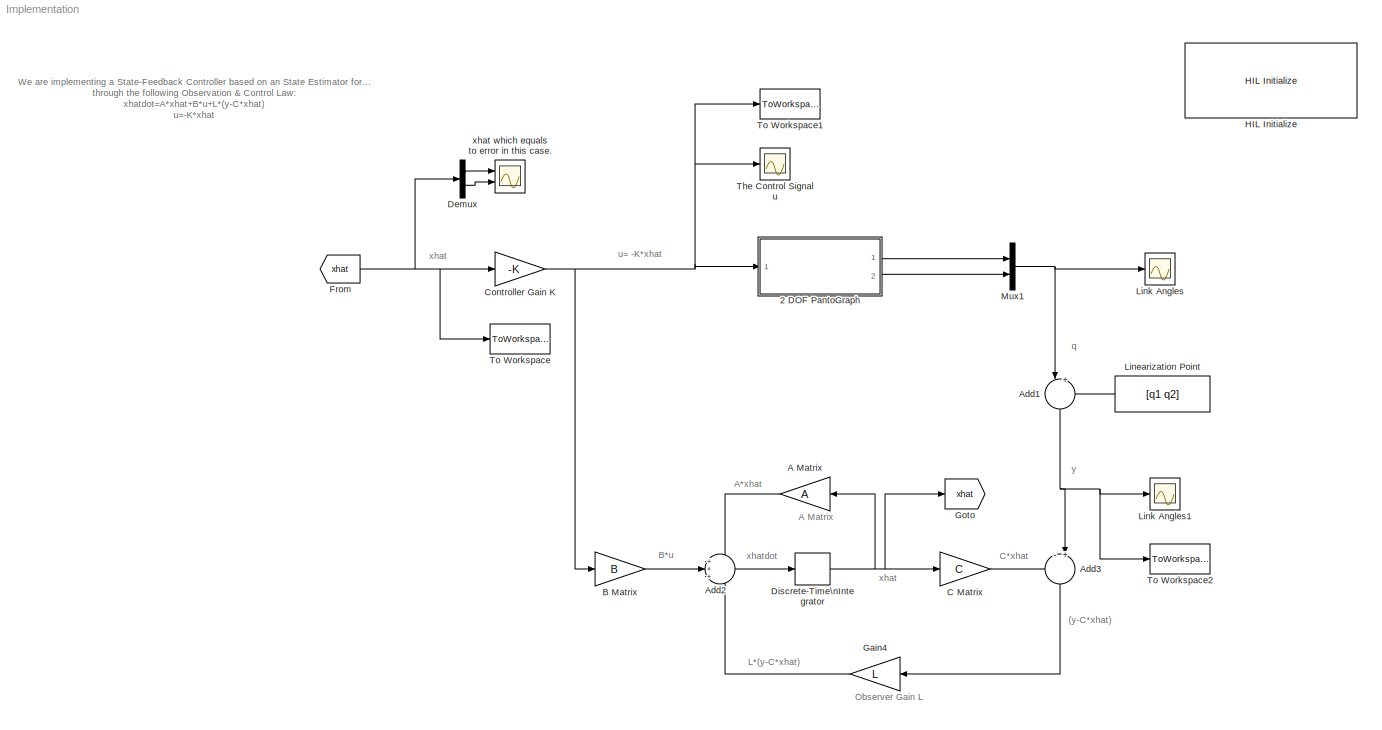
MODEL Implementation
KIND model
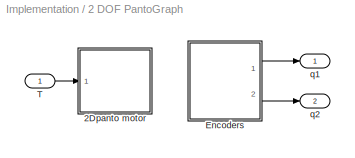
BLOCK [SubSystem] 2 DOF PantoGraph
  FunctionWithSeparateData = off
  MaskHideContents = off
  MinAlgLoopOccurrences = off
  Opaque = off
  Ports = [1, 2]
  PropExecContextOutsideSubsystem = off
  RTWSystemCode = Auto
  RequestExecContextInheritance = off
  SID = 22
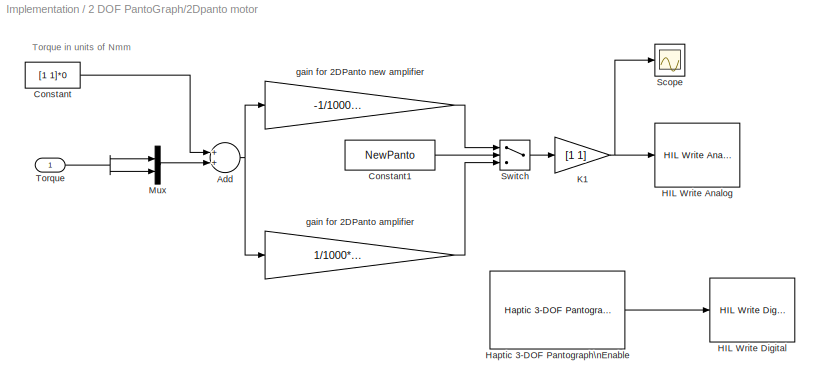
BLOCK [SubSystem] 2 DOF PantoGraph/2Dpanto motor
  FunctionWithSeparateData = off
  MaskHideContents = off
  MinAlgLoopOccurrences = off
  Opaque = off
  Ports = [1]
  PropExecContextOutsideSubsystem = off
  RTWSystemCode = Auto
  RequestExecContextInheritance = off
  SID = 24
BLOCK [Sum] 2 DOF PantoGraph/2Dpanto motor/Add
  InputSameDT = off
  OutDataTypeStr = Inherit: Inherit via internal rule
  Ports = [2, 1]
  SID = 26
  SaturateOnIntegerOverflow = off
BLOCK [Constant] 2 DOF PantoGraph/2Dpanto motor/Constant
  SID = 27
  Value = [1 1]*0
BLOCK [Constant] 2 DOF PantoGraph/2Dpanto motor/Constant1
  SID = 28
  Value = NewPanto
BLOCK [Reference] 2 DOF PantoGraph/2Dpanto motor/HIL Write Analog  REF=quarc_library/Data Acquisition/Generic/Immediate I//O/HIL Write Analog
  AttributesFormatString = (%<object_name>)
  Ports = [1]
  SID = 29
  SourceBlock = quarc_library/Data Acquisition/Generic/Immediate I//O/HIL Write Analog
  SourceType = HIL Write Analog
  UserData = DataTag0
  UserDataPersistent = on
  active = off
  channels = [0:1]
  object_name = HIL-2
  sample_time = -1
  vector_input = on
BLOCK [Reference] 2 DOF PantoGraph/2Dpanto motor/HIL Write Digital  REF=quarc_library/Data Acquisition/Generic/Immediate I//O/HIL Write Digital
  AttributesFormatString = (%<object_name>)
  Ports = [1]
  SID = 30
  SourceBlock = quarc_library/Data Acquisition/Generic/Immediate I//O/HIL Write Digital
  SourceType = HIL Write Digital
  UserData = DataTag1
  UserDataPersistent = on
  active = off
  channels = 0:3
  object_name = HIL-2
  sample_time = -1
  vector_input = on
BLOCK [Reference] 2 DOF PantoGraph/2Dpanto motor/Haptic 3-DOF Pantograph\nEnable  REF=quarc_library/Devices/Quanser/Haptics/Pantographs/Haptic 3-DOF\nPlanar Pantograph/Interfacing/Haptic 3-DOF Pantograph\nEnable
  Ports = [0, 1]
  SID = 31
  SourceBlock = quarc_library/Devices/Quanser/Haptics/Pantographs/Haptic 3-DOF\nPlanar Pantograph/Interfacing/Haptic 3-DOF Pantograph\nEnable
  SourceType = Haptic 3-DOF Pantograph Enable
BLOCK [Gain] 2 DOF PantoGraph/2Dpanto motor/K1
  Gain = [1 1]
  OutDataTypeStr = Inherit: Inherit via internal rule
  ParamDataTypeStr = Inherit: Inherit via internal rule
  SID = 32
  SaturateOnIntegerOverflow = off
BLOCK [Mux] 2 DOF PantoGraph/2Dpanto motor/Mux
  DisplayOption = bar
  Inputs = 2
  Ports = [2, 1]
  SID = 33
BLOCK [Scope] 2 DOF PantoGraph/2Dpanto motor/Scope
  DataFormat = StructureWithTime
  Floating = off
  NumInputPorts = 1
  Ports = [1]
  SID = 34
  SampleTime = 0
  SaveName = ScopeData2
BLOCK [Switch] 2 DOF PantoGraph/2Dpanto motor/Switch
  Criteria = u2 > Threshold
  InputSameDT = off
  SID = 35
  SaturateOnIntegerOverflow = off
BLOCK [Inport] 2 DOF PantoGraph/2Dpanto motor/Torque
  IconDisplay = Port number
  SID = 25
BLOCK [Gain] 2 DOF PantoGraph/2Dpanto motor/gain for 2DPanto amplifier
  Gain = 1/1000*2.17/4.9
  OutDataTypeStr = Inherit: Inherit via internal rule
  ParamDataTypeStr = Inherit: Inherit via internal rule
  SID = 36
  SaturateOnIntegerOverflow = off
BLOCK [Gain] 2 DOF PantoGraph/2Dpanto motor/gain for 2DPanto new amplifier
  Gain = -1/1000*4*2.17/4.9
  OutDataTypeStr = Inherit: Inherit via internal rule
  ParamDataTypeStr = Inherit: Inherit via internal rule
  SID = 37
  SaturateOnIntegerOverflow = off
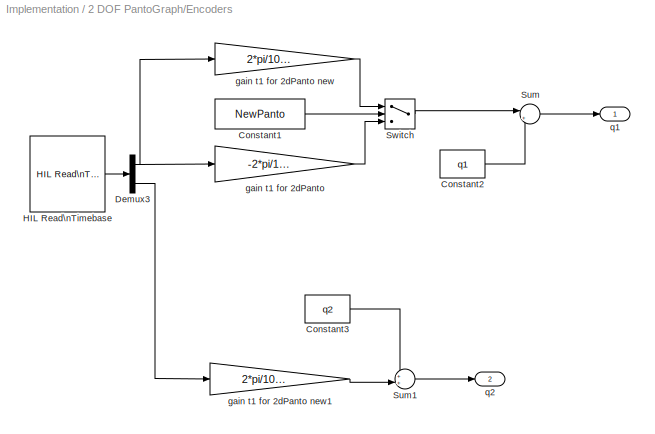
BLOCK [SubSystem] 2 DOF PantoGraph/Encoders
  FunctionWithSeparateData = off
  MaskHideContents = off
  MinAlgLoopOccurrences = off
  Opaque = off
  Ports = [0, 2]
  PropExecContextOutsideSubsystem = off
  RTWSystemCode = Auto
  RequestExecContextInheritance = off
  SID = 38
BLOCK [Constant] 2 DOF PantoGraph/Encoders/Constant1
  SID = 39
  Value = NewPanto
BLOCK [Constant] 2 DOF PantoGraph/Encoders/Constant2
  SID = 40
  Value = q1
BLOCK [Constant] 2 DOF PantoGraph/Encoders/Constant3
  SID = 41
  Value = q2
BLOCK [Demux] 2 DOF PantoGraph/Encoders/Demux3
  DisplayOption = bar
  Outputs = 3
  Ports = [1, 3]
  SID = 42
BLOCK [Reference] 2 DOF PantoGraph/Encoders/HIL Read\nTimebase  REF=quarc_library/Data Acquisition/Generic/Timebases/HIL Read\nTimebase
  AttributesFormatString = (%<object_name>)
  Ports = [0, 1]
  SID = 43
  SourceBlock = quarc_library/Data Acquisition/Generic/Timebases/HIL Read\nTimebase
  SourceType = HIL Read Timebase
  UserData = DataTag2
  UserDataPersistent = on
  active = on
  analog_channels = []
  clock = 0
  data_type_mode = Inherit via back propagation
  digital_channels = []
  digital_data_type = boolean
  encoder_channels = [0:2]
  encoder_data_type = double
  object_name = HIL-2
  other_channels = []
  samples_in_buffer = max(ceil(1/qc_get_step_size), 1)
  vector_output = on
BLOCK [Sum] 2 DOF PantoGraph/Encoders/Sum
  IconShape = round
  InputSameDT = off
  Inputs = |++
  OutDataTypeStr = Inherit: Inherit via internal rule
  Ports = [2, 1]
  SID = 44
  SaturateOnIntegerOverflow = off
BLOCK [Sum] 2 DOF PantoGraph/Encoders/Sum1
  IconShape = round
  InputSameDT = off
  Inputs = ++|
  OutDataTypeStr = Inherit: Inherit via internal rule
  Ports = [2, 1]
  SID = 45
  SaturateOnIntegerOverflow = off
BLOCK [Switch] 2 DOF PantoGraph/Encoders/Switch
  Criteria = u2 > Threshold
  InputSameDT = off
  SID = 46
  SaturateOnIntegerOverflow = off
BLOCK [Gain] 2 DOF PantoGraph/Encoders/gain t1 for 2dPanto
  Gain = -2*pi/1024/75
  OutDataTypeStr = Inherit: Inherit via internal rule
  ParamDataTypeStr = Inherit: Inherit via internal rule
  SID = 47
  SaturateOnIntegerOverflow = off
BLOCK [Gain] 2 DOF PantoGraph/Encoders/gain t1 for 2dPanto new
  Gain = 2*pi/1024/75
  OutDataTypeStr = Inherit: Inherit via internal rule
  ParamDataTypeStr = Inherit: Inherit via internal rule
  SID = 48
  SaturateOnIntegerOverflow = off
BLOCK [Gain] 2 DOF PantoGraph/Encoders/gain t1 for 2dPanto new1
  Gain = 2*pi/1000/5
  OutDataTypeStr = Inherit: Inherit via internal rule
  ParamDataTypeStr = Inherit: Inherit via internal rule
  SID = 49
  SaturateOnIntegerOverflow = off
BLOCK [Outport] 2 DOF PantoGraph/Encoders/q1
  IconDisplay = Port number
  SID = 50
BLOCK [Outport] 2 DOF PantoGraph/Encoders/q2
  IconDisplay = Port number
  Port = 2
  SID = 51
BLOCK [Inport] 2 DOF PantoGraph/T
  IconDisplay = Port number
  SID = 23
BLOCK [Outport] 2 DOF PantoGraph/q1
  IconDisplay = Port number
  SID = 52
BLOCK [Outport] 2 DOF PantoGraph/q2
  IconDisplay = Port number
  Port = 2
  SID = 53
BLOCK [Gain] A Matrix
  Gain = A
  Multiplication = Matrix(K*u)
  OutDataTypeStr = Inherit: Inherit via internal rule
  ParamDataTypeStr = Inherit: Inherit via internal rule
  SID = 14
  SaturateOnIntegerOverflow = off
BLOCK [Sum] Add1
  IconShape = round
  InputSameDT = off
  Inputs = |+-
  OutDataTypeStr = Inherit: Inherit via internal rule
  Ports = [2, 1]
  SID = 107
  SaturateOnIntegerOverflow = off
BLOCK [Sum] Add2
  IconShape = round
  InputSameDT = off
  Inputs = +++
  OutDataTypeStr = Inherit: Inherit via internal rule
  Ports = [3, 1]
  SID = 3
  SaturateOnIntegerOverflow = off
BLOCK [Sum] Add3
  IconShape = round
  InputSameDT = off
  Inputs = -+|
  OutDataTypeStr = Inherit: Inherit via internal rule
  Ports = [2, 1]
  SID = 4
  SaturateOnIntegerOverflow = off
BLOCK [Gain] B Matrix
  Gain = B
  Multiplication = Matrix(K*u)
  OutDataTypeStr = Inherit: Inherit via internal rule
  ParamDataTypeStr = Inherit: Inherit via internal rule
  SID = 12
  SaturateOnIntegerOverflow = off
BLOCK [Gain] C Matrix
  Gain = C
  Multiplication = Matrix(K*u)
  OutDataTypeStr = Inherit: Inherit via internal rule
  ParamDataTypeStr = Inherit: Inherit via internal rule
  SID = 13
  SaturateOnIntegerOverflow = off
BLOCK [Gain] Controller Gain K
  Gain = -K
  Multiplication = Matrix(K*u)
  OutDataTypeStr = Inherit: Inherit via internal rule
  ParamDataTypeStr = Inherit: Inherit via internal rule
  SID = 11
  SaturateOnIntegerOverflow = off
BLOCK [Demux] Demux
  DisplayOption = bar
  Outputs = 2
  Ports = [1, 2]
  SID = 112
BLOCK [DiscreteIntegrator] Discrete-Time\nIntegrator
  ExternalReset = none
  ICPrevOutput = DiscIntNeverNeededParam
  ICPrevScaledInput = DiscIntNeverNeededParam
  InitialCondition = [0 0 0 0]'
  InitialConditionSource = internal
  IntegratorMethod = Integration: Forward Euler
  Ports = [1, 1]
  SID = 10
  SampleTime = T
BLOCK [From] From
  GotoTag = xhat
  SID = 110
BLOCK [Gain] Gain4
  Gain = L
  Multiplication = Matrix(K*u)
  OutDataTypeStr = Inherit: Inherit via internal rule
  ParamDataTypeStr = Inherit: Inherit via internal rule
  SID = 15
  SaturateOnIntegerOverflow = off
BLOCK [Goto] Goto
  GotoTag = xhat
  SID = 109
  TagVisibility = local
BLOCK [Reference] HIL Initialize  REF=quarc_library/Data Acquisition/Generic/Configuration/HIL Initialize
  AttributesFormatString = %<object_name> (%<board_type>-%<board_number>)
  Ports = []
  SID = 1
  SourceBlock = quarc_library/Data Acquisition/Generic/Configuration/HIL Initialize
  SourceType = HIL Initialize
  UserData = DataTag3
  UserDataPersistent = on
  active = on
  analog_input_channels = [0:3]
  analog_input_maximums = 10
  analog_input_minimums = -10
  analog_output_channels = [0:3]
  analog_output_maximums = [10]
  analog_output_minimums = [-10]
  board_number = 0
  board_type = q4
  clock_modes = [0 0]
  digital_input_channels = []
  digital_output_channels = [0:3]
  digital_output_configuration = []
  encoder_channels = [0:3]
  encoder_filter_frequency = (1/60e-9)/1
  exclusive = off
  final_analog_outputs = [0]
  final_digital_outputs = [1]
  final_other_outputs = []
  final_pwm_outputs = [0]
  hardware_clocks = [0:1]
  initial_analog_outputs = [0]
  initial_clock_frequencies = []
  initial_digital_outputs = [1]
  initial_encoder_counts = [0]
  initial_other_outputs = []
  initial_pwm_outputs = [0]
  object_name = HIL-2
  other_output_channels = []
  pwm_alignment = []
  pwm_channels = []
  pwm_configuration = []
  pwm_frequency = (1/60e-9)/1024
  pwm_leading_deadband = []
  pwm_modes = [0]
  pwm_polarity = []
  pwm_trailing_deadband = []
  quadrature = [4]
  set_analog_input_params_at_start = off
  set_analog_input_params_at_switch_in = off
  set_analog_output_params_at_start = on
  set_analog_output_params_at_switch_in = off
  set_analog_outputs_at_start = on
  set_analog_outputs_at_switch_in = off
  set_analog_outputs_at_switch_out = off
  set_analog_outputs_at_terminate = on
  set_analog_outputs_on_watchdog = off
  set_clock_frequencies_at_start = off
  set_clock_frequencies_at_switch_in = off
  set_clock_params_at_start = on
  set_clock_params_at_switch_in = off
  set_digital_output_params_at_start = off
  set_digital_output_params_at_switch_in = off
  set_digital_outputs_at_start = on
  set_digital_outputs_at_switch_in = off
  set_digital_outputs_at_switch_out = off
  set_digital_outputs_at_terminate = on
  set_digital_outputs_on_watchdog = off
  set_encoder_counts_at_start = on
  set_encoder_counts_at_switch_in = off
  set_encoder_params_at_start = on
  set_encoder_params_at_switch_in = off
  set_other_outputs_at_start = off
  set_other_outputs_at_switch_in = off
  set_other_outputs_at_switch_out = off
  set_other_outputs_at_terminate = off
  set_other_outputs_on_watchdog = off
  set_pwm_outputs_at_start = on
  set_pwm_outputs_at_switch_in = off
  set_pwm_outputs_at_switch_out = off
  set_pwm_outputs_at_terminate = on
  set_pwm_outputs_on_watchdog = off
  set_pwm_params_at_start = on
  set_pwm_params_at_switch_in = off
  watchdog_analog_outputs = 0
  watchdog_digital_outputs = [2]
  watchdog_other_outputs = []
  watchdog_pwm_outputs = []
BLOCK [Constant] Linearization Point
  SID = 106
  Value = [q1 q2]
BLOCK [Scope] Link Angles
  DataFormat = StructureWithTime
  Floating = off
  LimitDataPoints = off
  NumInputPorts = 1
  Ports = [1]
  SID = 19
  SampleTime = 0
  SaveName = ScopeData1
  TimeRange = 30
  YMax = 3.2
  YMin = 1.5
BLOCK [Scope] Link Angles1
  DataFormat = StructureWithTime
  Floating = off
  LimitDataPoints = off
  NumInputPorts = 1
  Ports = [1]
  SID = 111
  SampleTime = 0
  SaveName = ScopeData4
  TimeRange = 60
  YMax = 0.017
  YMin = 0
  ZoomMode = yonly
BLOCK [Mux] Mux1
  DisplayOption = bar
  Inputs = 2
  Ports = [2, 1]
  SID = 17
BLOCK [Scope] The Control Signal u
  DataFormat = StructureWithTime
  Floating = off
  LimitDataPoints = off
  NumInputPorts = 1
  Ports = [1]
  SID = 20
  SampleTime = 0
  SaveName = ScopeData3
  TimeRange = 30
  YMax = 300
  YMin = -300
BLOCK [ToWorkspace] To Workspace
  MaxDataPoints = inf
  Ports = [1]
  SID = 116
  SampleTime = -1
  SaveFormat = Structure
  VariableName = xhat
BLOCK [ToWorkspace] To Workspace1
  MaxDataPoints = inf
  Ports = [1]
  SID = 117
  SampleTime = -1
  SaveFormat = Structure
  VariableName = inputu
BLOCK [ToWorkspace] To Workspace2
  MaxDataPoints = inf
  Ports = [1]
  SID = 118
  SampleTime = -1
  SaveFormat = Structure
  VariableName = outputy
BLOCK [Scope] xhat which equals to error in this case.
  DataFormat = StructureWithTime
  Floating = off
  LimitDataPoints = off
  NumInputPorts = 2
  Ports = [2]
  SID = 21
  SampleTime = 0
  YMax = 0.0045~0.15
  YMin = -0.003~-0.15
ANNOTATION (root): (y-C*xhat)
ANNOTATION (root): A Matrix
ANNOTATION (root): A*xhat
ANNOTATION (root): B*u
ANNOTATION (root): C*xhat
ANNOTATION (root): L*(y-C*xhat)
ANNOTATION (root): Observer Gain L
ANNOTATION (root): We are implementing a State-Feedback Controller based on an State Estimator for the 2 DOF PantoGraph Mechanism,\nthrough the following Observation & Control Law:\nxhatdot=A*xhat+B*u+L*(y-C*xhat)\nu=-K*xhat
ANNOTATION (root): q
ANNOTATION (root): u= -K*xhat
ANNOTATION (root): xhat
ANNOTATION (root): xhatdot
ANNOTATION (root): y
ANNOTATION 2 DOF PantoGraph/2Dpanto motor: Torque in units of Nmm
NET 2 DOF PantoGraph/2Dpanto motor/Add:1 -> 2 DOF PantoGraph/2Dpanto motor/gain for 2DPanto amplifier:1, 2 DOF PantoGraph/2Dpanto motor/gain for 2DPanto new amplifier:1
LINE 2 DOF PantoGraph/2Dpanto motor/Constant1:1 -> 2 DOF PantoGraph/2Dpanto motor/Switch:2
LINE 2 DOF PantoGraph/2Dpanto motor/Constant:1 -> 2 DOF PantoGraph/2Dpanto motor/Add:1
LINE 2 DOF PantoGraph/2Dpanto motor/Haptic 3-DOF Pantograph\nEnable:1 -> 2 DOF PantoGraph/2Dpanto motor/HIL Write Digital:1
NET 2 DOF PantoGraph/2Dpanto motor/K1:1 -> 2 DOF PantoGraph/2Dpanto motor/HIL Write Analog:1, 2 DOF PantoGraph/2Dpanto motor/Scope:1
LINE 2 DOF PantoGraph/2Dpanto motor/Mux:1 -> 2 DOF PantoGraph/2Dpanto motor/Add:2
LINE 2 DOF PantoGraph/2Dpanto motor/Switch:1 -> 2 DOF PantoGraph/2Dpanto motor/K1:1
NET 2 DOF PantoGraph/2Dpanto motor/Torque:1 -> 2 DOF PantoGraph/2Dpanto motor/Mux:1, 2 DOF PantoGraph/2Dpanto motor/Mux:2
LINE 2 DOF PantoGraph/2Dpanto motor/gain for 2DPanto amplifier:1 -> 2 DOF PantoGraph/2Dpanto motor/Switch:3
LINE 2 DOF PantoGraph/2Dpanto motor/gain for 2DPanto new amplifier:1 -> 2 DOF PantoGraph/2Dpanto motor/Switch:1
LINE 2 DOF PantoGraph/Encoders/Constant1:1 -> 2 DOF PantoGraph/Encoders/Switch:2
LINE 2 DOF PantoGraph/Encoders/Constant2:1 -> 2 DOF PantoGraph/Encoders/Sum:2
LINE 2 DOF PantoGraph/Encoders/Constant3:1 -> 2 DOF PantoGraph/Encoders/Sum1:1
NET 2 DOF PantoGraph/Encoders/Demux3:1 -> 2 DOF PantoGraph/Encoders/gain t1 for 2dPanto new:1, 2 DOF PantoGraph/Encoders/gain t1 for 2dPanto:1
LINE 2 DOF PantoGraph/Encoders/Demux3:3 -> 2 DOF PantoGraph/Encoders/gain t1 for 2dPanto new1:1
LINE 2 DOF PantoGraph/Encoders/HIL Read\nTimebase:1 -> 2 DOF PantoGraph/Encoders/Demux3:1
LINE 2 DOF PantoGraph/Encoders/Sum1:1 -> 2 DOF PantoGraph/Encoders/q2:1
LINE 2 DOF PantoGraph/Encoders/Sum:1 -> 2 DOF PantoGraph/Encoders/q1:1
LINE 2 DOF PantoGraph/Encoders/Switch:1 -> 2 DOF PantoGraph/Encoders/Sum:1
LINE 2 DOF PantoGraph/Encoders/gain t1 for 2dPanto new1:1 -> 2 DOF PantoGraph/Encoders/Sum1:2
LINE 2 DOF PantoGraph/Encoders/gain t1 for 2dPanto new:1 -> 2 DOF PantoGraph/Encoders/Switch:1
LINE 2 DOF PantoGraph/Encoders/gain t1 for 2dPanto:1 -> 2 DOF PantoGraph/Encoders/Switch:3
LINE 2 DOF PantoGraph/Encoders:1 -> 2 DOF PantoGraph/q1:1
LINE 2 DOF PantoGraph/Encoders:2 -> 2 DOF PantoGraph/q2:1
LINE 2 DOF PantoGraph/T:1 -> 2 DOF PantoGraph/2Dpanto motor:1
LINE 2 DOF PantoGraph:1 -> Mux1:1
LINE 2 DOF PantoGraph:2 -> Mux1:2
LINE A Matrix:1 -> Add2:1
NET Add1:1 -> Add3:2, Link Angles1:1, To Workspace2:1
LINE Add2:1 -> Discrete-Time\nIntegrator:1
LINE Add3:1 -> Gain4:1
LINE B Matrix:1 -> Add2:2
LINE C Matrix:1 -> Add3:1
NET Controller Gain K:1 -> 2 DOF PantoGraph:1, B Matrix:1, The Control Signal u:1, To Workspace1:1
LINE Demux:1 -> xhat which equals to error in this case.:1
LINE Demux:2 -> xhat which equals to error in this case.:2
NET Discrete-Time\nIntegrator:1 -> A Matrix:1, C Matrix:1, Goto:1
NET From:1 -> Controller Gain K:1, Demux:1, To Workspace:1
LINE Gain4:1 -> Add2:3
LINE Linearization Point:1 -> Add1:2
NET Mux1:1 -> Add1:1, Link Angles:1
note: NET lines group one-source signal fan-out (src -> all destinations, sorted); 1:1 wires keep LINE
